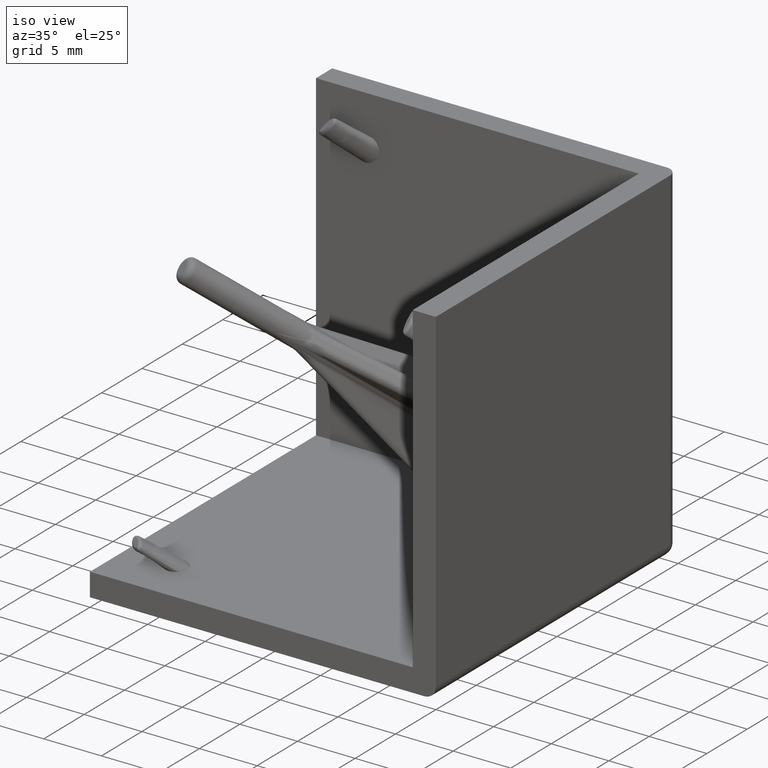
[diagram: clean part render]
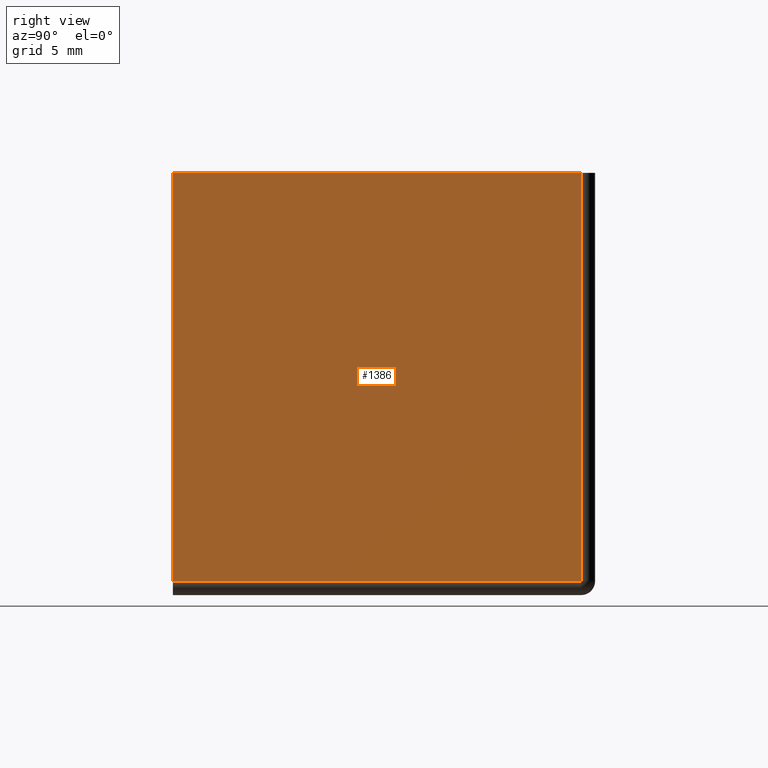
[diagram: tour spotlight — one face highlighted and labeled with its STEP entity id]
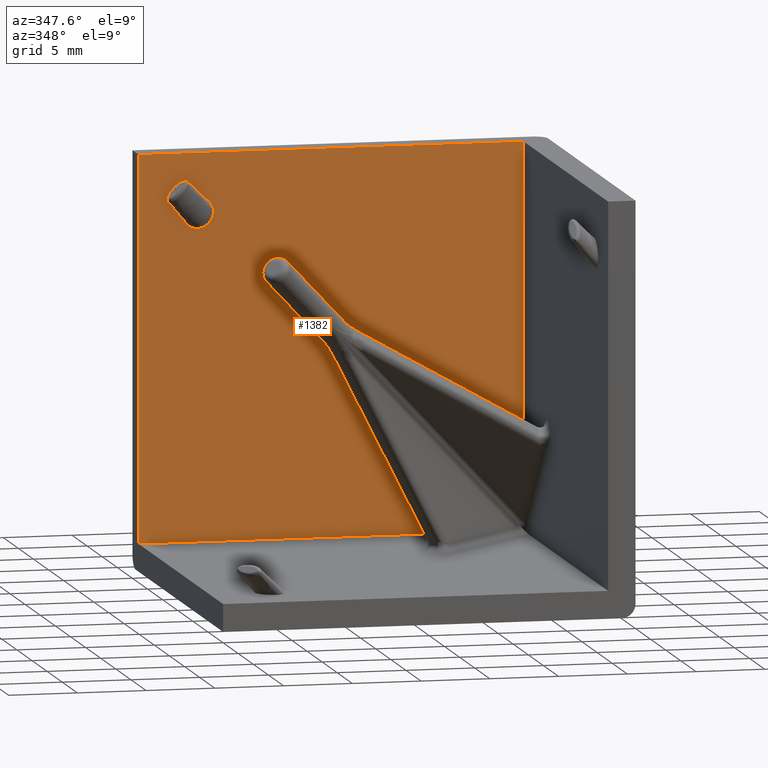
[diagram: tour spotlight — one face highlighted and labeled with its STEP entity id]
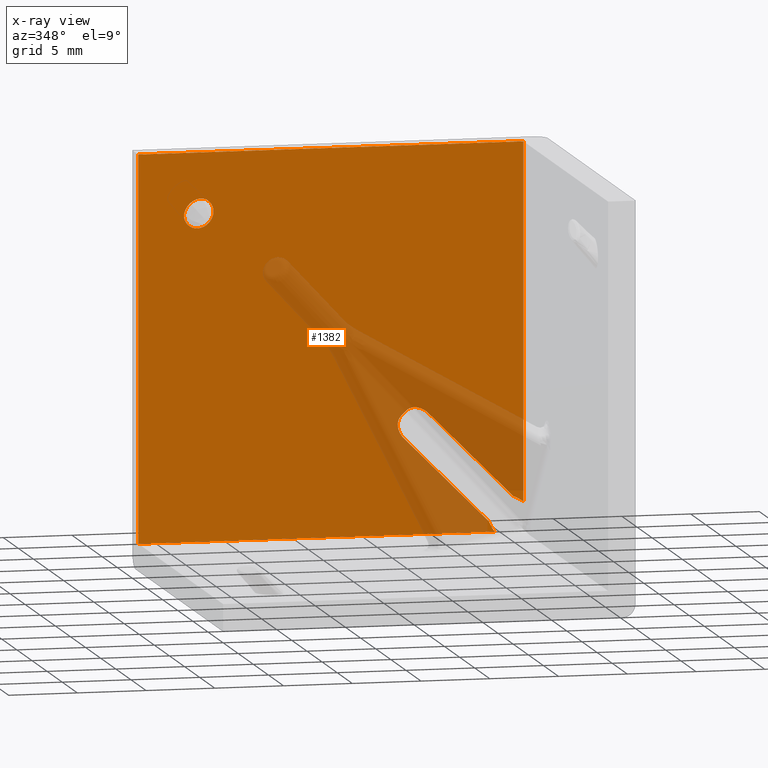
[diagram: x-ray of the same camera — body ghosted, this tour face saturated]
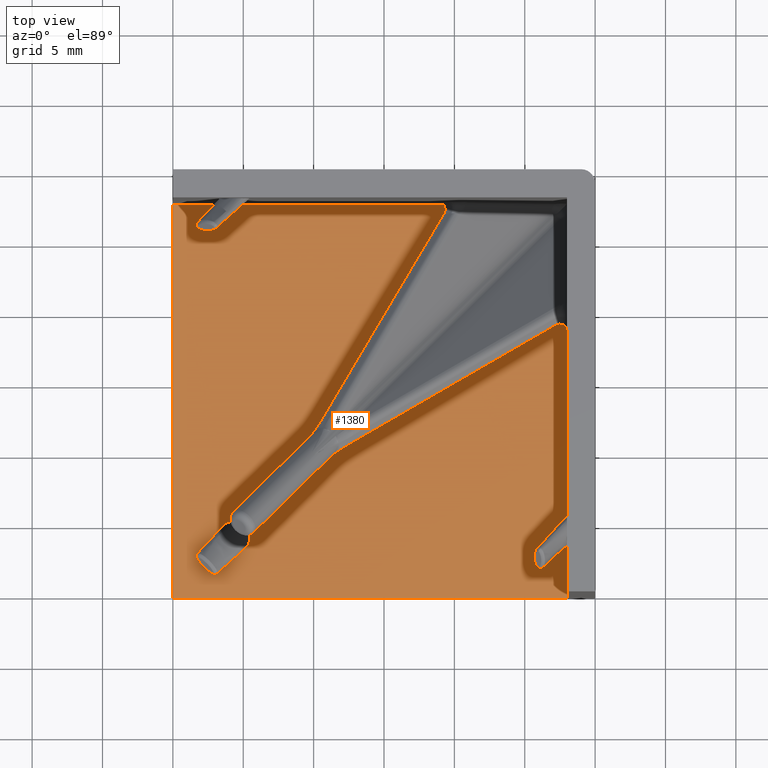
[diagram: tour spotlight — one face highlighted and labeled with its STEP entity id]
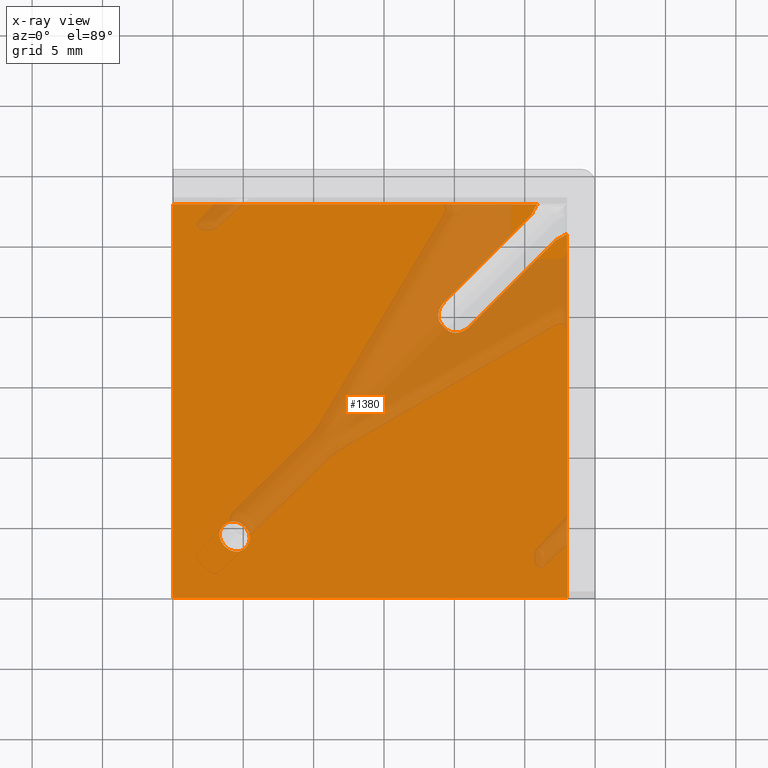
[diagram: x-ray of the same camera — body ghosted, this tour face saturated]
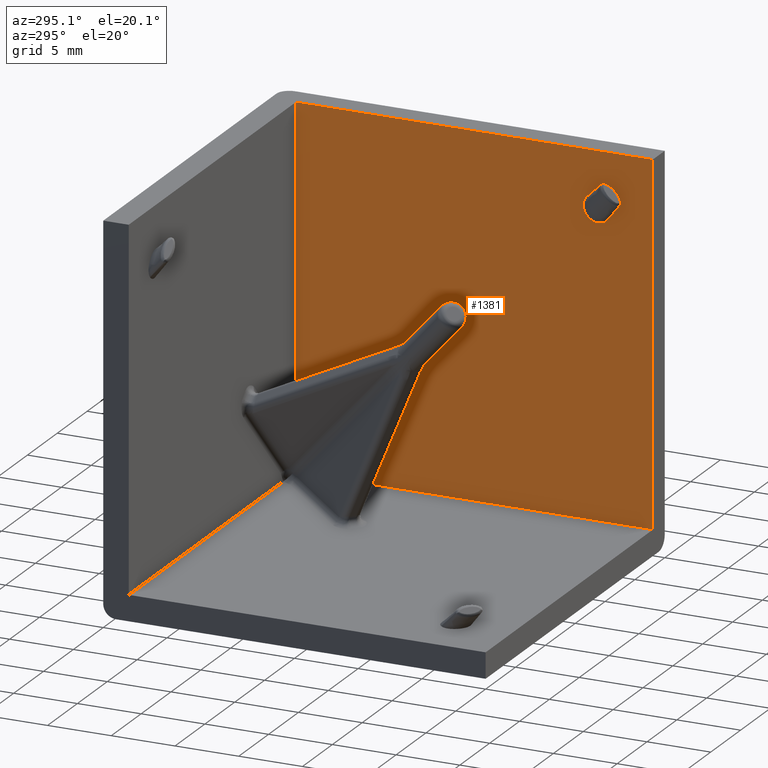
[diagram: tour spotlight — one face highlighted and labeled with its STEP entity id]
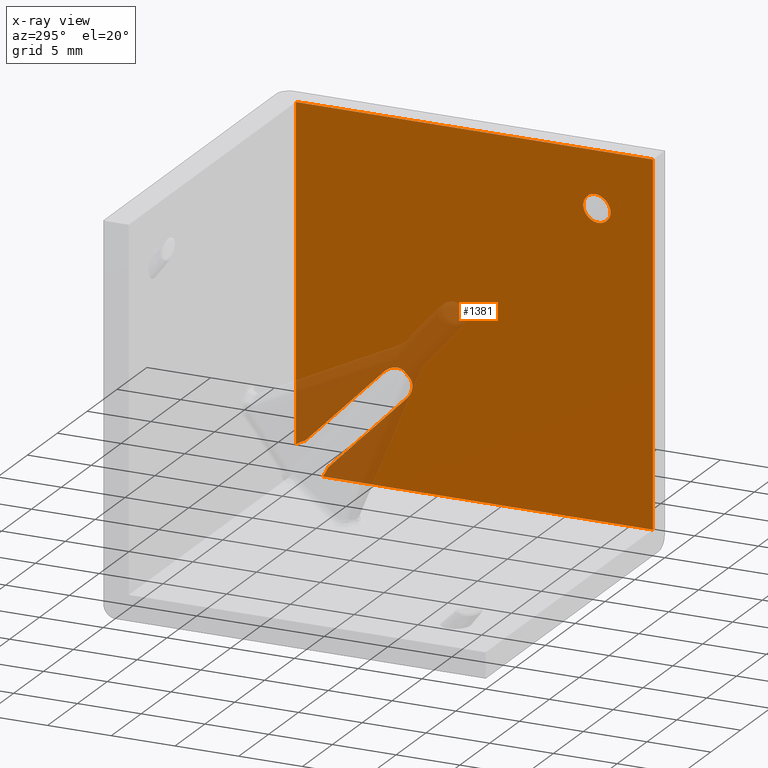
[diagram: x-ray of the same camera — body ghosted, this tour face saturated]
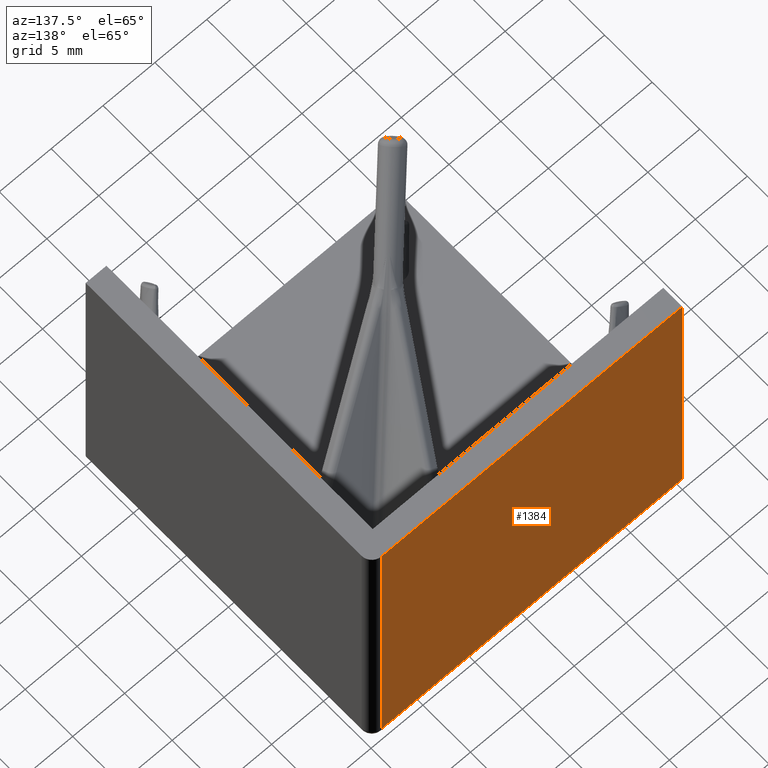
[diagram: tour spotlight — one face highlighted and labeled with its STEP entity id]
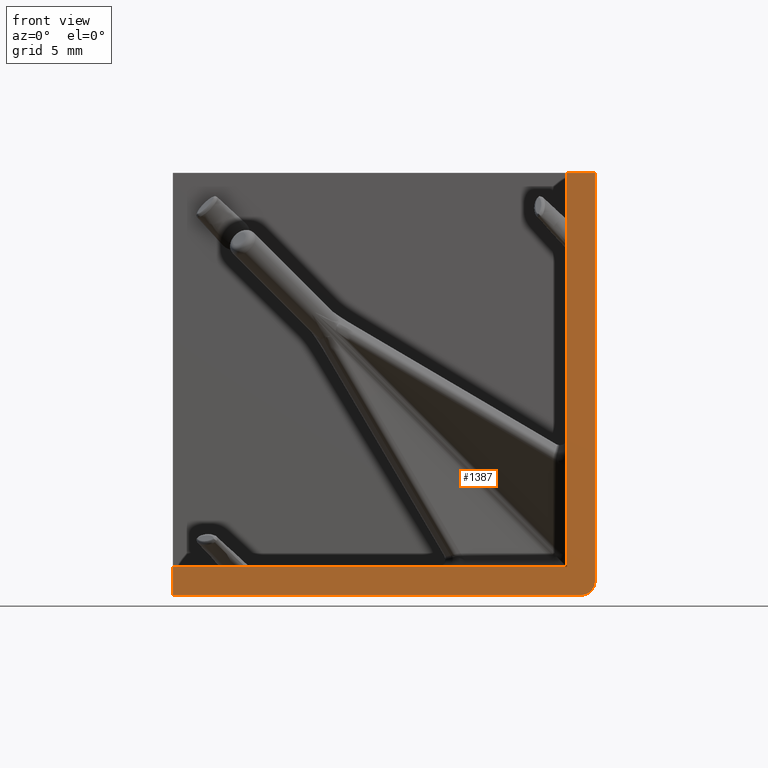
[diagram: tour spotlight — one face highlighted and labeled with its STEP entity id]
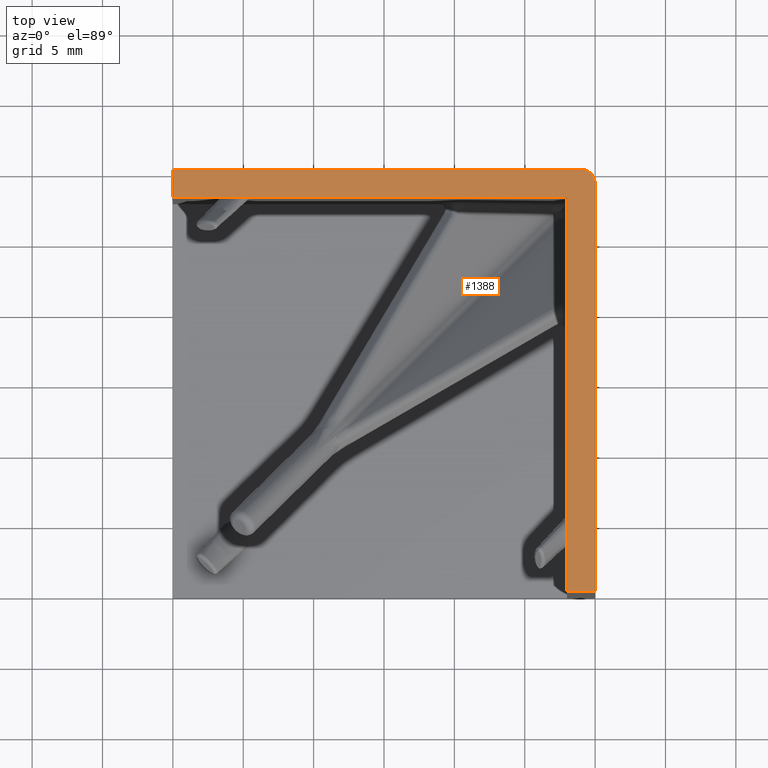
[diagram: tour spotlight — one face highlighted and labeled with its STEP entity id]
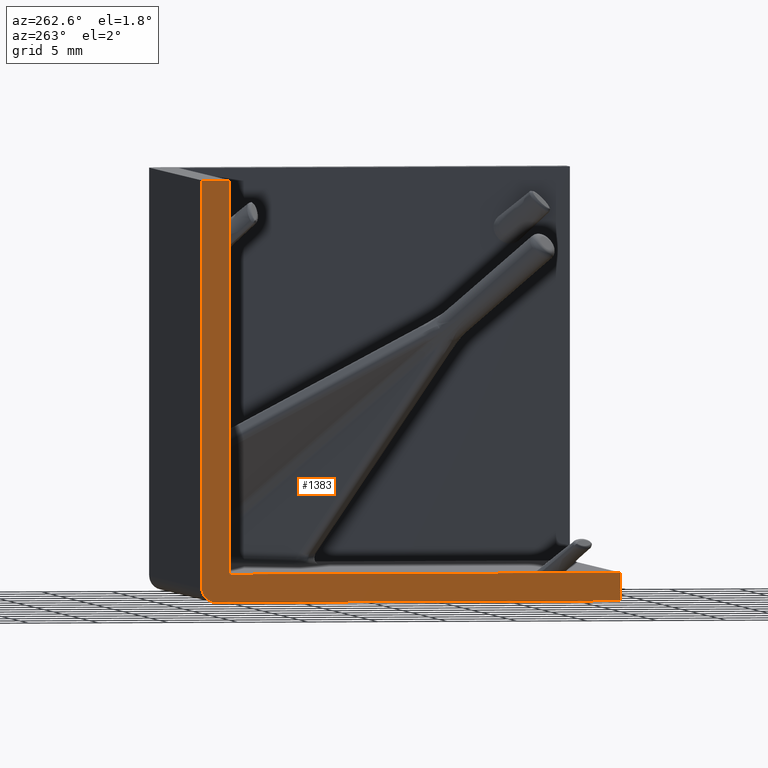
[diagram: tour spotlight — one face highlighted and labeled with its STEP entity id]
A machine part: a face-by-face anatomy tour. The part has 94 B-rep faces; the first image is the clean iso view, then the 8 largest visible faces are spotlighted one at a time (largest first), each with its STEP entity span.

Face 1 — right view, entity #1386. In plain terms, the highlighted planar face has unit normal (1, 0, 0).
Definition (entity closure, byte-faithful):
#23=PLANE('',#1517);
#220=FACE_OUTER_BOUND('',#319,.T.);
#319=EDGE_LOOP('',(#1068,#1069,#1070,#1071));
#437=LINE('',#3775,#509);
#438=LINE('',#3779,#510);
#439=LINE('',#3781,#511);
#440=LINE('',#3782,#512);
#509=VECTOR('',#1761,29.);
#510=VECTOR('',#1766,29.);
#511=VECTOR('',#1767,29.);
#512=VECTOR('',#1768,29.);
#685=VERTEX_POINT('',#3772);
#686=VERTEX_POINT('',#3774);
#687=VERTEX_POINT('',#3778);
#688=VERTEX_POINT('',#3780);
#834=EDGE_CURVE('',#686,#685,#437,.T.);
#836=EDGE_CURVE('',#687,#685,#438,.T.);
#837=EDGE_CURVE('',#688,#687,#439,.T.);
#838=EDGE_CURVE('',#688,#686,#440,.T.);
#1068=ORIENTED_EDGE('',*,*,#836,.F.);
#1069=ORIENTED_EDGE('',*,*,#837,.F.);
#1070=ORIENTED_EDGE('',*,*,#838,.T.);
#1071=ORIENTED_EDGE('',*,*,#834,.T.);
#1386=ADVANCED_FACE('',(#220),#23,.T.);
#1517=AXIS2_PLACEMENT_3D('',#3777,#1764,#1765);
#1761=DIRECTION('',(0.,0.,1.));
#1764=DIRECTION('center_axis',(1.,0.,0.));
#1765=DIRECTION('ref_axis',(0.,0.,-1.));
#1766=DIRECTION('',(0.,1.,0.));
#1767=DIRECTION('',(0.,0.,1.));
#1768=DIRECTION('',(0.,1.,0.));
#3772=CARTESIAN_POINT('',(30.,29.,0.));
#3774=CARTESIAN_POINT('',(30.,29.,-29.));
#3775=CARTESIAN_POINT('',(30.,29.,-29.));
#3777=CARTESIAN_POINT('Origin',(30.,0.,-29.));
#3778=CARTESIAN_POINT('',(30.,0.,0.));
#3779=CARTESIAN_POINT('',(30.,0.,0.));
#3780=CARTESIAN_POINT('',(30.,0.,-29.));
#3781=CARTESIAN_POINT('',(30.,0.,-29.));
#3782=CARTESIAN_POINT('',(30.,0.,-29.));

Face 2 — auxiliary view, entity #1382. An x-ray twin of the same camera follows (body ghosted, this face saturated) — the face is partly hidden behind the body. In plain terms, the highlighted planar face has unit normal (0, -1, 0).
Definition (entity closure, byte-faithful):
#20=PLANE('',#1508);
#77=FACE_BOUND('',#315,.T.);
#101=ELLIPSE('',#1509,2.30916470382844,1.2116115874888);
#102=ELLIPSE('',#1510,2.30916470389304,1.21161158760001);
#216=FACE_OUTER_BOUND('',#314,.T.);
#314=EDGE_LOOP('',(#1040,#1041,#1042,#1043,#1044,#1045,#1046,#1047,#1048,
#1049,#1050));
#315=EDGE_LOOP('',(#1051,#1052));
#401=LINE('',#2583,#473);
#417=LINE('',#3586,#489);
#425=LINE('',#3662,#497);
#426=LINE('',#3688,#498);
#427=LINE('',#3728,#499);
#428=LINE('',#3731,#500);
#429=LINE('',#3732,#501);
#473=VECTOR('',#1635,0.499999999999994);
#489=VECTOR('',#1719,25.9017045281975);
#497=VECTOR('',#1733,25.9017045281982);
#498=VECTOR('',#1738,8.7449318601002);
#499=VECTOR('',#1739,8.74493186009913);
#500=VECTOR('',#1742,28.);
#501=VECTOR('',#1743,27.9999999999998);
#536=B_SPLINE_CURVE_WITH_KNOTS('',3,(#2093,#2094,#2095,#2096,#2097,#2098,
#2099,#2100,#2101,#2102,#2103,#2104,#2105,#2106,#2107,#2108,#2109,#2110),
 .UNSPECIFIED.,.F.,.F.,(4,2,2,2,2,2,2,2,4),(9.9998634307824E-7,0.0267991192524014,
0.0419632161738594,0.0551690237669276,0.0700006947237737,0.0848317251026224,
0.0980336547221618,0.113183549980959,0.139943128540016),.UNSPECIFIED.);
#565=B_SPLINE_CURVE_WITH_KNOTS('',3,(#3689,#3690,#3691,#3692,#3693,#3694,
#3695,#3696,#3697,#3698,#3699,#3700,#3701,#3702,#3703,#3704,#3705,#3706,
#3707),.UNSPECIFIED.,.F.,.F.,(4,3,3,3,3,3,4),(1.57209315010399E-14,0.209621703290508,
0.407168312317999,0.597843076659109,0.78536971303498,1.16358281433584,1.57079632679491),
 .UNSPECIFIED.);
#566=B_SPLINE_CURVE_WITH_KNOTS('',3,(#3709,#3710,#3711,#3712,#3713,#3714,
#3715,#3716,#3717,#3718,#3719,#3720,#3721,#3722,#3723,#3724,#3725,#3726,
#3727),.UNSPECIFIED.,.F.,.F.,(4,3,3,3,3,3,4),(1.57079632679491,1.97800983925393,
2.35622294055477,2.54374957693064,2.73442434127176,2.93197095029927,3.14159265358981),
 .UNSPECIFIED.);
#567=B_SPLINE_CURVE_WITH_KNOTS('',3,(#3733,#3734,#3735,#3736,#3737,#3738,
#3739,#3740,#3741,#3742,#3743,#3744,#3745,#3746,#3747,#3748,#3749,#3750,
#3751,#3752,#3753,#3754),.UNSPECIFIED.,.F.,.F.,(4,2,2,2,2,2,2,2,2,2,4),
(9.99999141047509E-7,0.0202169274678619,0.0404512577863559,0.0725629679808536,
0.100469535646416,0.129149740153124,0.157820945860751,0.185725530060717,
0.221376398050869,0.248789324434904,0.276168482984899),.UNSPECIFIED.);
#590=VERTEX_POINT('',#2091);
#591=VERTEX_POINT('',#2092);
#612=VERTEX_POINT('',#2570);
#615=VERTEX_POINT('',#2577);
#617=VERTEX_POINT('',#2581);
#622=VERTEX_POINT('',#2598);
#665=VERTEX_POINT('',#3583);
#666=VERTEX_POINT('',#3585);
#669=VERTEX_POINT('',#3611);
#675=VERTEX_POINT('',#3660);
#676=VERTEX_POINT('',#3687);
#677=VERTEX_POINT('',#3708);
#678=VERTEX_POINT('',#3730);
#717=EDGE_CURVE('',#590,#591,#536,.T.);
#744=EDGE_CURVE('',#615,#617,#401,.T.);
#801=EDGE_CURVE('',#666,#665,#417,.T.);
#814=EDGE_CURVE('',#669,#675,#425,.T.);
#816=EDGE_CURVE('',#665,#612,#101,.T.);
#817=EDGE_CURVE('',#612,#676,#426,.T.);
#818=EDGE_CURVE('',#615,#676,#565,.T.);
#819=EDGE_CURVE('',#677,#617,#566,.T.);
#820=EDGE_CURVE('',#677,#622,#427,.T.);
#821=EDGE_CURVE('',#622,#669,#102,.T.);
#822=EDGE_CURVE('',#678,#675,#428,.T.);
#823=EDGE_CURVE('',#666,#678,#429,.T.);
#824=EDGE_CURVE('',#591,#590,#567,.T.);
#1040=ORIENTED_EDGE('',*,*,#816,.T.);
#1041=ORIENTED_EDGE('',*,*,#817,.T.);
#1042=ORIENTED_EDGE('',*,*,#818,.F.);
#1043=ORIENTED_EDGE('',*,*,#744,.T.);
#1044=ORIENTED_EDGE('',*,*,#819,.F.);
#1045=ORIENTED_EDGE('',*,*,#820,.T.);
#1046=ORIENTED_EDGE('',*,*,#821,.T.);
#1047=ORIENTED_EDGE('',*,*,#814,.T.);
#1048=ORIENTED_EDGE('',*,*,#822,.F.);
#1049=ORIENTED_EDGE('',*,*,#823,.F.);
#1050=ORIENTED_EDGE('',*,*,#801,.T.);
#1051=ORIENTED_EDGE('',*,*,#717,.F.);
#1052=ORIENTED_EDGE('',*,*,#824,.F.);
#1382=ADVANCED_FACE('',(#216,#77),#20,.T.);
#1508=AXIS2_PLACEMENT_3D('',#3685,#1734,#1735);
#1509=AXIS2_PLACEMENT_3D('',#3686,#1736,#1737);
#1510=AXIS2_PLACEMENT_3D('',#3729,#1740,#1741);
#1635=DIRECTION('',(0.707106781186546,0.,0.707106781186549));
#1719=DIRECTION('',(1.,0.,-3.49148336110938E-15));
#1733=DIRECTION('',(0.,0.,1.));
#1734=DIRECTION('center_axis',(0.,-1.,0.));
#1735=DIRECTION('ref_axis',(0.,0.,-1.));
#1736=DIRECTION('center_axis',(0.,1.,0.));
#1737=DIRECTION('ref_axis',(-0.650808546536153,0.,0.759241882245375));
#1738=DIRECTION('',(-0.707106781186544,0.,0.707106781186551));
#1739=DIRECTION('',(0.707106781186544,0.,-0.707106781186551));
#1740=DIRECTION('center_axis',(5.08850780993698E-14,1.,8.12172707391398E-14));
#1741=DIRECTION('ref_axis',(0.75924188225795,1.42228114471731E-14,-0.650808546521483));
#1742=DIRECTION('',(1.,0.,0.));
#1743=DIRECTION('',(0.,0.,1.));
#2091=CARTESIAN_POINT('',(5.15687613178487,28.,-3.56797183249991));
#2092=CARTESIAN_POINT('',(3.56797183249972,28.,-5.15687613178507));
#2093=CARTESIAN_POINT('Ctrl Pts',(5.15687613178487,28.,-3.56797183249991));
#2094=CARTESIAN_POINT('Ctrl Pts',(5.09193685050705,28.,-3.50663308381739));
#2095=CARTESIAN_POINT('Ctrl Pts',(4.99483952469198,27.9999999999967,-3.43174317236282));
#2096=CARTESIAN_POINT('Ctrl Pts',(4.79066505736388,27.9999999999967,-3.35007943140658));
#2097=CARTESIAN_POINT('Ctrl Pts',(4.68179780882591,28.0000000000304,-3.31723672417886));
#2098=CARTESIAN_POINT('Ctrl Pts',(4.41484974376621,28.0000000000304,-3.31572224543753));
#2099=CARTESIAN_POINT('Ctrl Pts',(4.2753132124315,28.0000000000113,-3.33987434101841));
#2100=CARTESIAN_POINT('Ctrl Pts',(3.96705646122052,28.0000000000113,-3.46595323833345));
#2101=CARTESIAN_POINT('Ctrl Pts',(3.8171221091707,28.,-3.56897430957663));
#2102=CARTESIAN_POINT('Ctrl Pts',(3.56882928874133,28.,-3.8173104923037));
#2103=CARTESIAN_POINT('Ctrl Pts',(3.46583558237832,28.0000000000114,-3.96725759674559));
#2104=CARTESIAN_POINT('Ctrl Pts',(3.33983272273932,28.0000000000114,-4.27549209477404));
#2105=CARTESIAN_POINT('Ctrl Pts',(3.31570012811391,28.0000000000304,-4.41501340352948));
#2106=CARTESIAN_POINT('Ctrl Pts',(3.31726371789367,28.0000000000304,-4.68188825344341));
#2107=CARTESIAN_POINT('Ctrl Pts',(3.35009684737404,27.9999999999967,-4.79072974910329));
#2108=CARTESIAN_POINT('Ctrl Pts',(3.4317756498678,27.9999999999967,-4.99488333720718));
#2109=CARTESIAN_POINT('Ctrl Pts',(3.50664984753405,28.,-5.09195460483947));
#2110=CARTESIAN_POINT('Ctrl Pts',(3.56797183249972,28.,-5.15687613178507));
#2570=CARTESIAN_POINT('',(25.4936193074848,28.,-27.2613862604518));
#2577=CARTESIAN_POINT('',(19.0976136706457,28.,-19.4511670612395));
#2581=CARTESIAN_POINT('',(19.451167061239,28.,-19.0976136706463));
#2583=CARTESIAN_POINT('',(19.8047204518323,28.,-18.744060280053));
#2598=CARTESIAN_POINT('',(27.2613862604504,28.,-25.4936193074847));
#3583=CARTESIAN_POINT('',(25.9017045281975,27.9999999994467,-27.9999999994467));
#3585=CARTESIAN_POINT('',(4.89858719658942E-16,28.,-27.9999999999998));
#3586=CARTESIAN_POINT('',(3.98134208076866E-15,28.,-27.9999999999999));
#3611=CARTESIAN_POINT('',(27.9999999994467,27.9999999994466,-25.9017045281982));
#3660=CARTESIAN_POINT('',(28.,28.,0.));
#3662=CARTESIAN_POINT('',(28.,28.,-29.));
#3685=CARTESIAN_POINT('Origin',(4.89858719658942E-16,28.,-29.));
#3686=CARTESIAN_POINT('Origin',(27.0782163796695,28.,-27.5415275249796));
#3687=CARTESIAN_POINT('',(19.3100186881937,28.,-21.0777856411606));
#3688=CARTESIAN_POINT('',(13.6161165235166,28.,-15.3838834764835));
#3689=CARTESIAN_POINT('Ctrl Pts',(19.0976136706457,28.,-19.4511670612395));
#3690=CARTESIAN_POINT('Ctrl Pts',(19.0531305636494,28.,-19.4956501682646));
#3691=CARTESIAN_POINT('Ctrl Pts',(19.0121612356888,28.,-19.5476511056917));
#3692=CARTESIAN_POINT('Ctrl Pts',(18.9773321423829,28.,-19.6067849122596));
#3693=CARTESIAN_POINT('Ctrl Pts',(18.9445093517553,28.,-19.6625123621515));
#3694=CARTESIAN_POINT('Ctrl Pts',(18.9171580573293,28.,-19.7245629088179));
#3695=CARTESIAN_POINT('Ctrl Pts',(18.8970092885537,28.,-19.7917587792937));
#3696=CARTESIAN_POINT('Ctrl Pts',(18.87756141366,28.,-19.8566171781837));
#3697=CARTESIAN_POINT('Ctrl Pts',(18.8648339018569,28.,-19.926253898573));
#3698=CARTESIAN_POINT('Ctrl Pts',(18.8597318713853,28.,-19.9989802203662));
#3699=CARTESIAN_POINT('Ctrl Pts',(18.8547140777809,28.,-20.0705057971723));
#3700=CARTESIAN_POINT('Ctrl Pts',(18.8570757049852,28.,-20.1450019739831));
#3701=CARTESIAN_POINT('Ctrl Pts',(18.866932441114,28.,-20.2204858317078));
#3702=CARTESIAN_POINT('Ctrl Pts',(18.8868119996239,28.,-20.3727254520623));
#3703=CARTESIAN_POINT('Ctrl Pts',(18.9378713476309,28.,-20.5287249436918));
#3704=CARTESIAN_POINT('Ctrl Pts',(19.0119620557021,28.,-20.6720784111723));
#3705=CARTESIAN_POINT('Ctrl Pts',(19.0917338493563,28.,-20.8264238550905));
#3706=CARTESIAN_POINT('Ctrl Pts',(19.1976479191864,28.,-20.9654148721338));
#3707=CARTESIAN_POINT('Ctrl Pts',(19.3100186881937,28.,-21.0777856411606));
#3708=CARTESIAN_POINT('',(21.0777856411601,28.,-19.3100186881943));
#3709=CARTESIAN_POINT('Ctrl Pts',(21.0777856411601,28.,-19.3100186881943));
#3710=CARTESIAN_POINT('Ctrl Pts',(20.9654148721332,28.,-19.197647919187));
#3711=CARTESIAN_POINT('Ctrl Pts',(20.8264238550899,28.,-19.0917338493568));
#3712=CARTESIAN_POINT('Ctrl Pts',(20.6720784111718,28.,-19.0119620557027));
#3713=CARTESIAN_POINT('Ctrl Pts',(20.5287249436913,28.,-18.9378713476315));
#3714=CARTESIAN_POINT('Ctrl Pts',(20.3727254520617,28.,-18.8868119996245));
#3715=CARTESIAN_POINT('Ctrl Pts',(20.2204858317073,28.,-18.8669324411146));
#3716=CARTESIAN_POINT('Ctrl Pts',(20.1450019739826,28.,-18.8570757049857));
#3717=CARTESIAN_POINT('Ctrl Pts',(20.0705057971718,28.,-18.8547140777814));
#3718=CARTESIAN_POINT('Ctrl Pts',(19.9989802203657,28.,-18.8597318713858));
#3719=CARTESIAN_POINT('Ctrl Pts',(19.9262538985725,28.,-18.8648339018575));
#3720=CARTESIAN_POINT('Ctrl Pts',(19.8566171781833,28.,-18.8775614136605));
#3721=CARTESIAN_POINT('Ctrl Pts',(19.7917587792932,28.,-18.8970092885542));
#3722=CARTESIAN_POINT('Ctrl Pts',(19.7245629088173,28.,-18.9171580573298));
#3723=CARTESIAN_POINT('Ctrl Pts',(19.6625123621511,28.,-18.944509351756));
#3724=CARTESIAN_POINT('Ctrl Pts',(19.6067849122591,28.,-18.9773321423834));
#3725=CARTESIAN_POINT('Ctrl Pts',(19.547651105691,28.,-19.0121612356892));
#3726=CARTESIAN_POINT('Ctrl Pts',(19.4956501682641,28.,-19.0531305636499));
#3727=CARTESIAN_POINT('Ctrl Pts',(19.451167061239,28.,-19.0976136706463));
#3728=CARTESIAN_POINT('',(26.7225587038992,28.,-24.9547917509335));
#3729=CARTESIAN_POINT('Origin',(27.5415275248535,28.0000000000001,-27.0782163797088));
#3730=CARTESIAN_POINT('',(4.89858719658942E-16,28.,0.));
#3731=CARTESIAN_POINT('',(4.89858719658942E-16,28.,0.));
#3732=CARTESIAN_POINT('',(4.89858719658942E-16,28.,-29.));
#3733=CARTESIAN_POINT('Ctrl Pts',(3.56797183249972,28.,-5.15687613178507));
#3734=CARTESIAN_POINT('Ctrl Pts',(3.61424398046843,28.,-5.20586441066847));
#3735=CARTESIAN_POINT('Ctrl Pts',(3.66654245305144,28.,-5.25075641566986));
#3736=CARTESIAN_POINT('Ctrl Pts',(3.77695119702573,28.,-5.32770002265015));
#3737=CARTESIAN_POINT('Ctrl Pts',(3.8354744508774,28.0000000000205,-5.36002240830828));
#3738=CARTESIAN_POINT('Ctrl Pts',(3.99458333181129,28.0000000000205,-5.42744626984555));
#3739=CARTESIAN_POINT('Ctrl Pts',(4.11938322730925,28.0000000000063,-5.46188957297722));
#3740=CARTESIAN_POINT('Ctrl Pts',(4.40221236043665,28.0000000000063,-5.46242184537166));
#3741=CARTESIAN_POINT('Ctrl Pts',(4.5448584212942,28.0000000000024,-5.43773533590953));
#3742=CARTESIAN_POINT('Ctrl Pts',(4.84593038071099,28.0000000000024,-5.31262839606181));
#3743=CARTESIAN_POINT('Ctrl Pts',(4.98560691423612,28.,-5.21727769362836));
#3744=CARTESIAN_POINT('Ctrl Pts',(5.21868588710748,28.,-4.98377744087342));
#3745=CARTESIAN_POINT('Ctrl Pts',(5.31377225348502,28.0000000000027,-4.84396888958242));
#3746=CARTESIAN_POINT('Ctrl Pts',(5.43830135831297,28.0000000000027,-4.54271573551071));
#3747=CARTESIAN_POINT('Ctrl Pts',(5.46265852448968,28.0000000000063,-4.40010185189841));
#3748=CARTESIAN_POINT('Ctrl Pts',(5.4615439859662,28.0000000000063,-4.10118439830074));
#3749=CARTESIAN_POINT('Ctrl Pts',(5.4194008409972,28.0000000000215,-3.97525768249568));
#3750=CARTESIAN_POINT('Ctrl Pts',(5.35944596788615,28.0000000000215,-3.83438060685683));
#3751=CARTESIAN_POINT('Ctrl Pts',(5.32718212599777,28.,-3.77611836759559));
#3752=CARTESIAN_POINT('Ctrl Pts',(5.25042496445557,28.,-3.66615736364301));
#3753=CARTESIAN_POINT('Ctrl Pts',(5.20568275330014,28.,-3.6140723903173));
#3754=CARTESIAN_POINT('Ctrl Pts',(5.15687613178487,28.,-3.56797183249991));

Face 3 — top view, entity #1380. An x-ray twin of the same camera follows (body ghosted, this face saturated) — the face is partly hidden behind the body. In plain terms, the highlighted planar face has unit normal (-0, -0, -1).
Definition (entity closure, byte-faithful):
#18=PLANE('',#1502);
#75=FACE_BOUND('',#311,.T.);
#97=ELLIPSE('',#1503,2.30916470388977,1.21161158756856);
#98=ELLIPSE('',#1504,2.3091647037826,1.21161158753113);
#214=FACE_OUTER_BOUND('',#310,.T.);
#310=EDGE_LOOP('',(#1014,#1015,#1016,#1017,#1018,#1019,#1020,#1021,#1022,
#1023,#1024));
#311=EDGE_LOOP('',(#1025,#1026));
#414=LINE('',#3538,#486);
#415=LINE('',#3560,#487);
#416=LINE('',#3582,#488);
#417=LINE('',#3586,#489);
#418=LINE('',#3588,#490);
#419=LINE('',#3590,#491);
#420=LINE('',#3591,#492);
#486=VECTOR('',#1714,8.7449318601);
#487=VECTOR('',#1715,0.5);
#488=VECTOR('',#1716,8.74493186009893);
#489=VECTOR('',#1719,25.9017045281975);
#490=VECTOR('',#1720,28.0000000000002);
#491=VECTOR('',#1721,28.);
#492=VECTOR('',#1722,25.9017045281977);
#544=B_SPLINE_CURVE_WITH_KNOTS('',3,(#2479,#2480,#2481,#2482,#2483,#2484,
#2485,#2486,#2487,#2488,#2489,#2490,#2491,#2492,#2493,#2494,#2495,#2496,
#2497,#2498,#2499,#2500),.UNSPECIFIED.,.F.,.F.,(4,2,2,2,2,2,2,2,2,2,4),
(9.99999141480623E-7,0.0202220531507337,0.0404440146537649,0.0667528580975194,
0.0873343683526495,0.108500034556084,0.129653499932419,0.150226283796508,
0.173971853177572,0.188840202392618,0.20369967181164),.UNSPECIFIED.);
#559=B_SPLINE_CURVE_WITH_KNOTS('',3,(#3540,#3541,#3542,#3543,#3544,#3545,
#3546,#3547,#3548,#3549,#3550,#3551,#3552,#3553,#3554,#3555,#3556,#3557,
#3558),.UNSPECIFIED.,.F.,.F.,(4,3,3,3,3,3,4),(2.0491421059976E-14,0.209621703290483,
0.407168312317981,0.597843076659118,0.78536971303502,1.16358281433593,1.57079632679491),
 .UNSPECIFIED.);
#560=B_SPLINE_CURVE_WITH_KNOTS('',3,(#3562,#3563,#3564,#3565,#3566,#3567,
#3568,#3569,#3570,#3571,#3572,#3573,#3574,#3575,#3576,#3577,#3578,#3579,
#3580),.UNSPECIFIED.,.F.,.F.,(4,3,3,3,3,3,4),(1.57079632679492,1.97800983925402,
2.35622294055484,2.54374957693069,2.73442434127179,2.93197095029927,3.14159265358981),
 .UNSPECIFIED.);
#561=B_SPLINE_CURVE_WITH_KNOTS('',3,(#3592,#3593,#3594,#3595,#3596,#3597,
#3598,#3599,#3600,#3601,#3602,#3603,#3604,#3605,#3606,#3607,#3608,#3609),
 .UNSPECIFIED.,.F.,.F.,(4,2,2,2,2,2,2,2,4),(9.99986347791833E-7,0.0268339075036231,
0.0430876769116758,0.0578137388818365,0.0743617618789594,0.0909078714170331,
0.105622146679277,0.122480235132331,0.152339572969768),.UNSPECIFIED.);
#602=VERTEX_POINT('',#2477);
#603=VERTEX_POINT('',#2478);
#658=VERTEX_POINT('',#3534);
#659=VERTEX_POINT('',#3535);
#660=VERTEX_POINT('',#3537);
#661=VERTEX_POINT('',#3539);
#662=VERTEX_POINT('',#3559);
#663=VERTEX_POINT('',#3561);
#664=VERTEX_POINT('',#3581);
#665=VERTEX_POINT('',#3583);
#666=VERTEX_POINT('',#3585);
#667=VERTEX_POINT('',#3587);
#668=VERTEX_POINT('',#3589);
#729=EDGE_CURVE('',#602,#603,#544,.T.);
#794=EDGE_CURVE('',#658,#659,#97,.T.);
#795=EDGE_CURVE('',#659,#660,#414,.T.);
#796=EDGE_CURVE('',#661,#660,#559,.T.);
#797=EDGE_CURVE('',#661,#662,#415,.T.);
#798=EDGE_CURVE('',#663,#662,#560,.T.);
#799=EDGE_CURVE('',#663,#664,#416,.T.);
#800=EDGE_CURVE('',#664,#665,#98,.T.);
#801=EDGE_CURVE('',#666,#665,#417,.T.);
#802=EDGE_CURVE('',#667,#666,#418,.T.);
#803=EDGE_CURVE('',#667,#668,#419,.T.);
#804=EDGE_CURVE('',#658,#668,#420,.T.);
#805=EDGE_CURVE('',#603,#602,#561,.T.);
#1014=ORIENTED_EDGE('',*,*,#794,.T.);
#1015=ORIENTED_EDGE('',*,*,#795,.T.);
#1016=ORIENTED_EDGE('',*,*,#796,.F.);
#1017=ORIENTED_EDGE('',*,*,#797,.T.);
#1018=ORIENTED_EDGE('',*,*,#798,.F.);
#1019=ORIENTED_EDGE('',*,*,#799,.T.);
#1020=ORIENTED_EDGE('',*,*,#800,.T.);
#1021=ORIENTED_EDGE('',*,*,#801,.F.);
#1022=ORIENTED_EDGE('',*,*,#802,.F.);
#1023=ORIENTED_EDGE('',*,*,#803,.T.);
#1024=ORIENTED_EDGE('',*,*,#804,.F.);
#1025=ORIENTED_EDGE('',*,*,#729,.F.);
#1026=ORIENTED_EDGE('',*,*,#805,.F.);
#1380=ADVANCED_FACE('',(#214,#75),#18,.F.);
#1502=AXIS2_PLACEMENT_3D('',#3533,#1710,#1711);
#1503=AXIS2_PLACEMENT_3D('',#3536,#1712,#1713);
#1504=AXIS2_PLACEMENT_3D('',#3584,#1717,#1718);
#1710=DIRECTION('center_axis',(-3.49148336110938E-15,-1.15648231731811E-16,
-1.));
#1711=DIRECTION('ref_axis',(-1.,0.,3.5527136788005E-15));
#1712=DIRECTION('center_axis',(3.9320681348319E-14,-8.20510307458139E-14,
-1.));
#1713=DIRECTION('ref_axis',(0.759241882247809,0.650808546533314,-2.35456039430794E-14));
#1714=DIRECTION('',(-0.707106781186546,-0.707106781186549,2.55062720993024E-15));
#1715=DIRECTION('',(-0.707106781186556,0.707106781186539,2.38707591215068E-15));
#1716=DIRECTION('',(0.707106781186546,0.707106781186549,-2.55062720993024E-15));
#1717=DIRECTION('center_axis',(0.,0.,-1.));
#1718=DIRECTION('ref_axis',(0.650808546505998,0.759241882271223,0.));
#1719=DIRECTION('',(1.,0.,-3.49148336110938E-15));
#1720=DIRECTION('',(-2.44929359829471E-16,1.,-1.1564823173181E-16));
#1721=DIRECTION('',(1.,6.93889390390722E-15,-3.49148336110938E-15));
#1722=DIRECTION('',(0.,-1.,1.15648231731811E-16));
#2477=CARTESIAN_POINT('',(5.15687613178758,3.56797183249677,-27.9999999999999));
#2478=CARTESIAN_POINT('',(3.56797183250236,5.15687613178183,-27.9999999999999));
#2479=CARTESIAN_POINT('Ctrl Pts',(5.15687613178758,3.56797183249677,-27.9999999999999));
#2480=CARTESIAN_POINT('Ctrl Pts',(5.2058767405425,3.61425562200848,-27.9999999999999));
#2481=CARTESIAN_POINT('Ctrl Pts',(5.25078493618947,3.66657600724303,-27.9999999999999));
#2482=CARTESIAN_POINT('Ctrl Pts',(5.32770735415866,3.7769690313044,-27.9999999999999));
#2483=CARTESIAN_POINT('Ctrl Pts',(5.36001098653913,3.83545810143108,-28.0000000000137));
#2484=CARTESIAN_POINT('Ctrl Pts',(5.41995433265716,3.97688984536294,-28.0000000000137));
#2485=CARTESIAN_POINT('Ctrl Pts',(5.46196881404483,4.10316708514338,-28.0000000000074));
#2486=CARTESIAN_POINT('Ctrl Pts',(5.46233696542734,4.40293838571166,-28.0000000000074));
#2487=CARTESIAN_POINT('Ctrl Pts',(5.43754132039729,4.54558325600112,-28.000000000002));
#2488=CARTESIAN_POINT('Ctrl Pts',(5.31221463246003,4.84665965711263,-28.000000000002));
#2489=CARTESIAN_POINT('Ctrl Pts',(5.21671771829351,4.98635095698489,-27.9999999999999));
#2490=CARTESIAN_POINT('Ctrl Pts',(4.98290694729428,5.2193686790065,-27.9999999999999));
#2491=CARTESIAN_POINT('Ctrl Pts',(4.84296515191231,5.31436882783711,-28.0000000000024));
#2492=CARTESIAN_POINT('Ctrl Pts',(4.54158867866806,5.43858925776978,-28.0000000000024));
#2493=CARTESIAN_POINT('Ctrl Pts',(4.39901747221972,5.4627823892312,-28.0000000000073));
#2494=CARTESIAN_POINT('Ctrl Pts',(4.11652137830726,5.46145250571256,-28.0000000000073));
#2495=CARTESIAN_POINT('Ctrl Pts',(3.99172560739076,5.42657247134958,-28.0000000000151));
#2496=CARTESIAN_POINT('Ctrl Pts',(3.83339785986018,5.35892384096177,-28.0000000000151));
#2497=CARTESIAN_POINT('Ctrl Pts',(3.77539990073018,5.32673092615524,-27.9999999999999));
#2498=CARTESIAN_POINT('Ctrl Pts',(3.66584536736299,5.25015638469793,-27.9999999999999));
#2499=CARTESIAN_POINT('Ctrl Pts',(3.61393539993265,5.20553771674376,-27.9999999999999));
#2500=CARTESIAN_POINT('Ctrl Pts',(3.56797183250236,5.15687613178183,-27.9999999999999));
#3533=CARTESIAN_POINT('Origin',(-30.0665927567459,29.9999999999996,-27.9999999999998));
#3534=CARTESIAN_POINT('',(27.9999999994467,25.9017045281977,-27.9999999994467));
#3535=CARTESIAN_POINT('',(27.2613862604512,25.4936193074845,-28.));
#3536=CARTESIAN_POINT('Origin',(27.5415275249159,27.0782163797203,-28.0000000000001));
#3537=CARTESIAN_POINT('',(21.0777856411602,19.3100186881935,-28.));
#3538=CARTESIAN_POINT('',(20.9119268105143,19.1441598575476,-28.));
#3539=CARTESIAN_POINT('',(19.4511670612391,19.0976136706455,-28.));
#3540=CARTESIAN_POINT('Ctrl Pts',(19.4511670612391,19.0976136706455,-28.));
#3541=CARTESIAN_POINT('Ctrl Pts',(19.4956501682642,19.0531305636492,-28.));
#3542=CARTESIAN_POINT('Ctrl Pts',(19.5476511056912,19.0121612356885,-28.));
#3543=CARTESIAN_POINT('Ctrl Pts',(19.6067849122592,18.9773321423827,-28.));
#3544=CARTESIAN_POINT('Ctrl Pts',(19.6625123621512,18.9445093517553,-28.));
#3545=CARTESIAN_POINT('Ctrl Pts',(19.7245629088173,18.9171580573289,-28.));
#3546=CARTESIAN_POINT('Ctrl Pts',(19.7917587792933,18.8970092885535,-28.));
#3547=CARTESIAN_POINT('Ctrl Pts',(19.8566171781834,18.8775614136599,-28.));
#3548=CARTESIAN_POINT('Ctrl Pts',(19.9262538985725,18.8648339018568,-28.));
#3549=CARTESIAN_POINT('Ctrl Pts',(19.9989802203658,18.8597318713851,-28.));
#3550=CARTESIAN_POINT('Ctrl Pts',(20.070505797172,18.8547140777806,-28.));
#3551=CARTESIAN_POINT('Ctrl Pts',(20.1450019739829,18.8570757049851,-28.));
#3552=CARTESIAN_POINT('Ctrl Pts',(20.2204858317074,18.8669324411138,-28.));
#3553=CARTESIAN_POINT('Ctrl Pts',(20.3727254520616,18.8868119996235,-28.));
#3554=CARTESIAN_POINT('Ctrl Pts',(20.5287249436916,18.9378713476307,-28.));
#3555=CARTESIAN_POINT('Ctrl Pts',(20.6720784111719,19.0119620557019,-28.));
#3556=CARTESIAN_POINT('Ctrl Pts',(20.8264238550898,19.0917338493561,-28.));
#3557=CARTESIAN_POINT('Ctrl Pts',(20.9654148721331,19.1976479191865,-28.));
#3558=CARTESIAN_POINT('Ctrl Pts',(21.0777856411602,19.3100186881935,-28.));
#3559=CARTESIAN_POINT('',(19.0976136706459,19.4511670612388,-28.));
#3560=CARTESIAN_POINT('',(-10.758906012431,49.307686744315,-27.9999999999999));
#3561=CARTESIAN_POINT('',(19.3100186881938,21.0777856411599,-28.));
#3562=CARTESIAN_POINT('Ctrl Pts',(19.3100186881939,21.0777856411599,-28.));
#3563=CARTESIAN_POINT('Ctrl Pts',(19.1976479191868,20.9654148721327,-28.));
#3564=CARTESIAN_POINT('Ctrl Pts',(19.0917338493565,20.8264238550898,-28.));
#3565=CARTESIAN_POINT('Ctrl Pts',(19.0119620557023,20.6720784111716,-28.));
#3566=CARTESIAN_POINT('Ctrl Pts',(18.937871347631,20.528724943691,-28.));
#3567=CARTESIAN_POINT('Ctrl Pts',(18.8868119996241,20.3727254520615,-28.));
#3568=CARTESIAN_POINT('Ctrl Pts',(18.8669324411142,20.2204858317071,-28.));
#3569=CARTESIAN_POINT('Ctrl Pts',(18.8570757049853,20.1450019739824,-28.));
#3570=CARTESIAN_POINT('Ctrl Pts',(18.8547140777809,20.0705057971716,-28.));
#3571=CARTESIAN_POINT('Ctrl Pts',(18.8597318713854,19.9989802203655,-28.));
#3572=CARTESIAN_POINT('Ctrl Pts',(18.8648339018571,19.9262538985723,-28.));
#3573=CARTESIAN_POINT('Ctrl Pts',(18.8775614136601,19.8566171781831,-28.));
#3574=CARTESIAN_POINT('Ctrl Pts',(18.8970092885538,19.791758779293,-28.));
#3575=CARTESIAN_POINT('Ctrl Pts',(18.9171580573294,19.724562908817,-28.));
#3576=CARTESIAN_POINT('Ctrl Pts',(18.9445093517555,19.6625123621508,-28.));
#3577=CARTESIAN_POINT('Ctrl Pts',(18.977332142383,19.6067849122589,-28.));
#3578=CARTESIAN_POINT('Ctrl Pts',(19.0121612356889,19.547651105691,-28.));
#3579=CARTESIAN_POINT('Ctrl Pts',(19.0531305636495,19.4956501682639,-28.));
#3580=CARTESIAN_POINT('Ctrl Pts',(19.0976136706458,19.4511670612388,-28.));
#3581=CARTESIAN_POINT('',(25.4936193074841,27.2613862604501,-28.));
#3582=CARTESIAN_POINT('',(-0.9171798548561,0.850587098109867,-27.9999999999999));
#3583=CARTESIAN_POINT('',(25.9017045281975,27.9999999994467,-27.9999999994467));
#3584=CARTESIAN_POINT('Origin',(27.0782163796014,27.5415275248329,-28.));
#3585=CARTESIAN_POINT('',(4.89858719658942E-16,28.,-27.9999999999998));
#3586=CARTESIAN_POINT('',(3.98134208076866E-15,28.,-27.9999999999999));
#3587=CARTESIAN_POINT('',(3.46944695195361E-15,-2.0122792321331E-13,-27.9999999999999));
#3588=CARTESIAN_POINT('',(0.,29.9999999999996,-27.9999999999999));
#3589=CARTESIAN_POINT('',(28.,-4.89858719658942E-16,-28.));
#3590=CARTESIAN_POINT('',(-30.0665927567457,-4.09856820404354E-13,-27.9999999999998));
#3591=CARTESIAN_POINT('',(28.,-3.7421048792713E-16,-28.));
#3592=CARTESIAN_POINT('Ctrl Pts',(3.56797183250236,5.15687613178183,-27.9999999999999));
#3593=CARTESIAN_POINT('Ctrl Pts',(3.50655347818453,5.09185257869509,-27.9999999999999));
#3594=CARTESIAN_POINT('Ctrl Pts',(3.43155687252816,4.99459553603158,-27.9999999999954));
#3595=CARTESIAN_POINT('Ctrl Pts',(3.34780488687597,4.78484326957279,-27.9999999999954));
#3596=CARTESIAN_POINT('Ctrl Pts',(3.31719403599935,4.67614562572568,-28.0000000000332));
#3597=CARTESIAN_POINT('Ctrl Pts',(3.31573169527607,4.41481823646045,-28.0000000000332));
#3598=CARTESIAN_POINT('Ctrl Pts',(3.33987734902117,4.27531155364567,-28.0000000000099));
#3599=CARTESIAN_POINT('Ctrl Pts',(3.46597247363103,3.96700303217793,-28.0000000000099));
#3600=CARTESIAN_POINT('Ctrl Pts',(3.56904777946675,3.81701141575063,-27.9999999999999));
#3601=CARTESIAN_POINT('Ctrl Pts',(3.81752364773737,3.56865344690624,-27.9999999999999));
#3602=CARTESIAN_POINT('Ctrl Pts',(3.96755022250273,3.4656524165455,-28.0000000000101));
#3603=CARTESIAN_POINT('Ctrl Pts',(4.2757982536806,3.33976421501559,-28.0000000000101));
#3604=CARTESIAN_POINT('Ctrl Pts',(4.4152634905883,3.3156715458568,-28.0000000000333));
#3605=CARTESIAN_POINT('Ctrl Pts',(4.68185330056374,3.31729799675364,-28.0000000000333));
#3606=CARTESIAN_POINT('Ctrl Pts',(4.79050176940888,3.35004124833996,-27.9999999999954));
#3607=CARTESIAN_POINT('Ctrl Pts',(4.99470674861109,3.43164214943859,-27.9999999999954));
#3608=CARTESIAN_POINT('Ctrl Pts',(5.09188994081226,3.50658877500632,-27.9999999999999));
#3609=CARTESIAN_POINT('Ctrl Pts',(5.15687613178758,3.56797183249677,-27.9999999999999));

Face 4 — auxiliary view, entity #1381. An x-ray twin of the same camera follows (body ghosted, this face saturated) — the face is partly hidden behind the body. In plain terms, the highlighted planar face has unit normal (-1, 0, 0).
Definition (entity closure, byte-faithful):
#19=PLANE('',#1505);
#76=FACE_BOUND('',#313,.T.);
#99=ELLIPSE('',#1506,2.30916470423399,1.21161158769759);
#100=ELLIPSE('',#1507,2.30916470389506,1.21161158755189);
#215=FACE_OUTER_BOUND('',#312,.T.);
#312=EDGE_LOOP('',(#1027,#1028,#1029,#1030,#1031,#1032,#1033,#1034,#1035,
#1036,#1037));
#313=EDGE_LOOP('',(#1038,#1039));
#407=LINE('',#2625,#479);
#420=LINE('',#3591,#492);
#421=LINE('',#3615,#493);
#422=LINE('',#3656,#494);
#423=LINE('',#3659,#495);
#424=LINE('',#3661,#496);
#425=LINE('',#3662,#497);
#479=VECTOR('',#1667,0.499999999999996);
#492=VECTOR('',#1722,25.9017045281977);
#493=VECTOR('',#1727,8.74493186010016);
#494=VECTOR('',#1728,8.74493186009917);
#495=VECTOR('',#1731,28.);
#496=VECTOR('',#1732,28.);
#497=VECTOR('',#1733,25.9017045281982);
#540=B_SPLINE_CURVE_WITH_KNOTS('',3,(#2307,#2308,#2309,#2310,#2311,#2312,
#2313,#2314,#2315,#2316,#2317,#2318,#2319,#2320,#2321,#2322,#2323,#2324),
 .UNSPECIFIED.,.F.,.F.,(4,2,2,2,2,2,2,2,4),(9.99986343362953E-7,0.0267991192525546,
0.04196321617387,0.0551690237667175,0.0700006947232567,0.0848317251018245,
0.0980336547213833,0.113183549981393,0.139943128545395),.UNSPECIFIED.);
#562=B_SPLINE_CURVE_WITH_KNOTS('',3,(#3616,#3617,#3618,#3619,#3620,#3621,
#3622,#3623,#3624,#3625,#3626,#3627,#3628,#3629,#3630,#3631,#3632,#3633,
#3634),.UNSPECIFIED.,.F.,.F.,(4,3,3,3,3,3,4),(0.,0.209621703290375,0.407168312317786,
0.597843076658852,0.785369713034708,1.16358281433562,1.5707963267949),
 .UNSPECIFIED.);
#563=B_SPLINE_CURVE_WITH_KNOTS('',3,(#3636,#3637,#3638,#3639,#3640,#3641,
#3642,#3643,#3644,#3645,#3646,#3647,#3648,#3649,#3650,#3651,#3652,#3653,
#3654),.UNSPECIFIED.,.F.,.F.,(4,3,3,3,3,3,4),(1.57079632679489,1.97800983925411,
2.35622294055493,2.54374957693076,2.73442434127183,2.93197095029929,3.14159265358979),
 .UNSPECIFIED.);
#564=B_SPLINE_CURVE_WITH_KNOTS('',3,(#3663,#3664,#3665,#3666,#3667,#3668,
#3669,#3670,#3671,#3672,#3673,#3674,#3675,#3676,#3677,#3678,#3679,#3680,
#3681,#3682,#3683,#3684),.UNSPECIFIED.,.F.,.F.,(4,2,2,2,2,2,2,2,2,2,4),
(9.99999141953901E-7,0.0202160006703781,0.0404504042571645,0.0725622307276759,
0.100468899443549,0.129149207802572,0.157820517330277,0.185725202574939,
0.221376199660692,0.248789225310466,0.276168483003838),.UNSPECIFIED.);
#596=VERTEX_POINT('',#2305);
#597=VERTEX_POINT('',#2306);
#630=VERTEX_POINT('',#2619);
#632=VERTEX_POINT('',#2623);
#658=VERTEX_POINT('',#3534);
#668=VERTEX_POINT('',#3589);
#669=VERTEX_POINT('',#3611);
#670=VERTEX_POINT('',#3612);
#671=VERTEX_POINT('',#3614);
#672=VERTEX_POINT('',#3635);
#673=VERTEX_POINT('',#3655);
#674=VERTEX_POINT('',#3658);
#675=VERTEX_POINT('',#3660);
#723=EDGE_CURVE('',#596,#597,#540,.T.);
#761=EDGE_CURVE('',#630,#632,#407,.T.);
#804=EDGE_CURVE('',#658,#668,#420,.T.);
#806=EDGE_CURVE('',#669,#670,#99,.T.);
#807=EDGE_CURVE('',#670,#671,#421,.T.);
#808=EDGE_CURVE('',#630,#671,#562,.T.);
#809=EDGE_CURVE('',#672,#632,#563,.T.);
#810=EDGE_CURVE('',#672,#673,#422,.T.);
#811=EDGE_CURVE('',#673,#658,#100,.T.);
#812=EDGE_CURVE('',#668,#674,#423,.T.);
#813=EDGE_CURVE('',#675,#674,#424,.T.);
#814=EDGE_CURVE('',#669,#675,#425,.T.);
#815=EDGE_CURVE('',#597,#596,#564,.T.);
#1027=ORIENTED_EDGE('',*,*,#806,.T.);
#1028=ORIENTED_EDGE('',*,*,#807,.T.);
#1029=ORIENTED_EDGE('',*,*,#808,.F.);
#1030=ORIENTED_EDGE('',*,*,#761,.T.);
#1031=ORIENTED_EDGE('',*,*,#809,.F.);
#1032=ORIENTED_EDGE('',*,*,#810,.T.);
#1033=ORIENTED_EDGE('',*,*,#811,.T.);
#1034=ORIENTED_EDGE('',*,*,#804,.T.);
#1035=ORIENTED_EDGE('',*,*,#812,.T.);
#1036=ORIENTED_EDGE('',*,*,#813,.F.);
#1037=ORIENTED_EDGE('',*,*,#814,.F.);
#1038=ORIENTED_EDGE('',*,*,#723,.F.);
#1039=ORIENTED_EDGE('',*,*,#815,.F.);
#1381=ADVANCED_FACE('',(#215,#76),#19,.T.);
#1505=AXIS2_PLACEMENT_3D('',#3610,#1723,#1724);
#1506=AXIS2_PLACEMENT_3D('',#3613,#1725,#1726);
#1507=AXIS2_PLACEMENT_3D('',#3657,#1729,#1730);
#1667=DIRECTION('',(0.,-0.707106781186548,-0.707106781186547));
#1722=DIRECTION('',(0.,-1.,1.15648231731811E-16));
#1723=DIRECTION('center_axis',(-1.,0.,0.));
#1724=DIRECTION('ref_axis',(0.,0.,1.));
#1725=DIRECTION('center_axis',(1.,0.,0.));
#1726=DIRECTION('ref_axis',(0.,0.759241882155788,-0.650808546640666));
#1727=DIRECTION('',(0.,-0.707106781186548,0.707106781186548));
#1728=DIRECTION('',(0.,0.707106781186547,-0.707106781186547));
#1729=DIRECTION('center_axis',(1.,-8.12172707378126E-14,-5.088507809863E-14));
#1730=DIRECTION('ref_axis',(-1.42228114496464E-14,-0.650808546543716,0.759241882238892));
#1731=DIRECTION('',(0.,0.,1.));
#1732=DIRECTION('',(0.,-1.,0.));
#1733=DIRECTION('',(0.,0.,1.));
#2305=CARTESIAN_POINT('',(28.,3.56797183249975,-5.15687613178503));
#2306=CARTESIAN_POINT('',(28.,5.1568761317849,-3.56797183249986));
#2307=CARTESIAN_POINT('Ctrl Pts',(28.,3.56797183249975,-5.15687613178503));
#2308=CARTESIAN_POINT('Ctrl Pts',(28.,3.50663308381687,-5.09193685050684));
#2309=CARTESIAN_POINT('Ctrl Pts',(27.9999999999967,3.43174317236209,-4.99483952469122));
#2310=CARTESIAN_POINT('Ctrl Pts',(27.9999999999967,3.35007943140655,-4.79066505736413));
#2311=CARTESIAN_POINT('Ctrl Pts',(28.0000000000304,3.31723672417839,-4.68179780882583));
#2312=CARTESIAN_POINT('Ctrl Pts',(28.0000000000304,3.31572224543765,-4.41484974376355));
#2313=CARTESIAN_POINT('Ctrl Pts',(28.0000000000113,3.33987434101906,-4.27531321242849));
#2314=CARTESIAN_POINT('Ctrl Pts',(28.0000000000113,3.46595323833435,-3.96705646121909));
#2315=CARTESIAN_POINT('Ctrl Pts',(28.,3.5689743095776,-3.81712210916976));
#2316=CARTESIAN_POINT('Ctrl Pts',(28.,3.81731049230255,-3.56882928874245));
#2317=CARTESIAN_POINT('Ctrl Pts',(28.0000000000114,3.96725759674388,-3.46583558237954));
#2318=CARTESIAN_POINT('Ctrl Pts',(28.0000000000114,4.2754920947729,-3.33983272273938));
#2319=CARTESIAN_POINT('Ctrl Pts',(28.0000000000304,4.41501340352901,-3.31570012811434));
#2320=CARTESIAN_POINT('Ctrl Pts',(28.0000000000304,4.68188825345052,-3.3172637178935));
#2321=CARTESIAN_POINT('Ctrl Pts',(27.9999999999967,4.79072974910993,-3.35009684737703));
#2322=CARTESIAN_POINT('Ctrl Pts',(27.9999999999967,4.99488333720605,-3.43177564986739));
#2323=CARTESIAN_POINT('Ctrl Pts',(28.,5.09195460483862,-3.50664984753355));
#2324=CARTESIAN_POINT('Ctrl Pts',(28.,5.1568761317849,-3.56797183249986));
#2619=CARTESIAN_POINT('',(28.,19.4511670612393,-19.097613670646));
#2623=CARTESIAN_POINT('',(28.,19.097613670646,-19.4511670612393));
#2625=CARTESIAN_POINT('',(28.,18.7440602800527,-19.8047204518325));
#3534=CARTESIAN_POINT('',(27.9999999994467,25.9017045281977,-27.9999999994467));
#3589=CARTESIAN_POINT('',(28.,-4.89858719658942E-16,-28.));
#3591=CARTESIAN_POINT('',(28.,-3.7421048792713E-16,-28.));
#3610=CARTESIAN_POINT('Origin',(28.,-4.89858719658942E-16,-29.));
#3611=CARTESIAN_POINT('',(27.9999999994467,27.9999999994466,-25.9017045281982));
#3612=CARTESIAN_POINT('',(28.,27.2613862604515,-25.4936193074851));
#3613=CARTESIAN_POINT('Origin',(28.,27.5415275252229,-27.0782163801504));
#3614=CARTESIAN_POINT('',(28.,21.0777856411604,-19.310018688194));
#3615=CARTESIAN_POINT('',(28.,15.3838834764832,-13.6161165235168));
#3616=CARTESIAN_POINT('Ctrl Pts',(28.,19.4511670612393,-19.097613670646));
#3617=CARTESIAN_POINT('Ctrl Pts',(28.,19.4956501682647,-19.0531305636501));
#3618=CARTESIAN_POINT('Ctrl Pts',(28.,19.5476511056914,-19.0121612356889));
#3619=CARTESIAN_POINT('Ctrl Pts',(28.,19.6067849122593,-18.9773321423831));
#3620=CARTESIAN_POINT('Ctrl Pts',(28.,19.6625123621513,-18.9445093517557));
#3621=CARTESIAN_POINT('Ctrl Pts',(28.,19.7245629088175,-18.9171580573295));
#3622=CARTESIAN_POINT('Ctrl Pts',(28.,19.7917587792934,-18.897009288554));
#3623=CARTESIAN_POINT('Ctrl Pts',(28.,19.8566171781835,-18.8775614136602));
#3624=CARTESIAN_POINT('Ctrl Pts',(28.,19.9262538985728,-18.8648339018571));
#3625=CARTESIAN_POINT('Ctrl Pts',(28.,19.9989802203659,-18.8597318713856));
#3626=CARTESIAN_POINT('Ctrl Pts',(28.,20.070505797172,-18.8547140777812));
#3627=CARTESIAN_POINT('Ctrl Pts',(28.,20.145001973983,-18.8570757049854));
#3628=CARTESIAN_POINT('Ctrl Pts',(28.,20.2204858317076,-18.8669324411143));
#3629=CARTESIAN_POINT('Ctrl Pts',(28.,20.3727254520618,-18.8868119996242));
#3630=CARTESIAN_POINT('Ctrl Pts',(28.,20.5287249436916,-18.9378713476309));
#3631=CARTESIAN_POINT('Ctrl Pts',(28.,20.6720784111721,-19.0119620557024));
#3632=CARTESIAN_POINT('Ctrl Pts',(28.,20.8264238550902,-19.0917338493568));
#3633=CARTESIAN_POINT('Ctrl Pts',(28.,20.9654148721332,-19.1976479191869));
#3634=CARTESIAN_POINT('Ctrl Pts',(28.,21.0777856411604,-19.310018688194));
#3635=CARTESIAN_POINT('',(28.,19.310018688194,-21.0777856411604));
#3636=CARTESIAN_POINT('Ctrl Pts',(28.,19.310018688194,-21.0777856411604));
#3637=CARTESIAN_POINT('Ctrl Pts',(28.,19.1976479191869,-20.9654148721332));
#3638=CARTESIAN_POINT('Ctrl Pts',(28.,19.0917338493568,-20.8264238550902));
#3639=CARTESIAN_POINT('Ctrl Pts',(28.,19.0119620557024,-20.6720784111721));
#3640=CARTESIAN_POINT('Ctrl Pts',(28.,18.9378713476309,-20.5287249436916));
#3641=CARTESIAN_POINT('Ctrl Pts',(28.,18.8868119996242,-20.3727254520617));
#3642=CARTESIAN_POINT('Ctrl Pts',(28.,18.8669324411143,-20.2204858317076));
#3643=CARTESIAN_POINT('Ctrl Pts',(28.,18.8570757049854,-20.145001973983));
#3644=CARTESIAN_POINT('Ctrl Pts',(28.,18.8547140777812,-20.070505797172));
#3645=CARTESIAN_POINT('Ctrl Pts',(28.,18.8597318713856,-19.9989802203659));
#3646=CARTESIAN_POINT('Ctrl Pts',(28.,18.8648339018571,-19.9262538985727));
#3647=CARTESIAN_POINT('Ctrl Pts',(28.,18.8775614136602,-19.8566171781834));
#3648=CARTESIAN_POINT('Ctrl Pts',(28.,18.897009288554,-19.7917587792934));
#3649=CARTESIAN_POINT('Ctrl Pts',(28.,18.9171580573295,-19.7245629088176));
#3650=CARTESIAN_POINT('Ctrl Pts',(28.,18.9445093517557,-19.6625123621514));
#3651=CARTESIAN_POINT('Ctrl Pts',(28.,18.9773321423831,-19.6067849122593));
#3652=CARTESIAN_POINT('Ctrl Pts',(28.,19.012161235689,-19.5476511056913));
#3653=CARTESIAN_POINT('Ctrl Pts',(28.,19.0531305636498,-19.4956501682645));
#3654=CARTESIAN_POINT('Ctrl Pts',(28.,19.097613670646,-19.4511670612393));
#3655=CARTESIAN_POINT('',(28.,25.4936193074844,-27.2613862604508));
#3656=CARTESIAN_POINT('',(28.,24.9547917509332,-26.7225587038996));
#3657=CARTESIAN_POINT('Origin',(28.0000000000001,27.078216379739,-27.5415275249638));
#3658=CARTESIAN_POINT('',(28.,-4.89858719658942E-16,0.));
#3659=CARTESIAN_POINT('',(28.,-4.89858719658942E-16,-29.));
#3660=CARTESIAN_POINT('',(28.,28.,0.));
#3661=CARTESIAN_POINT('',(28.,-4.89858719658942E-16,0.));
#3662=CARTESIAN_POINT('',(28.,28.,-29.));
#3663=CARTESIAN_POINT('Ctrl Pts',(28.,5.1568761317849,-3.56797183249986));
#3664=CARTESIAN_POINT('Ctrl Pts',(28.,5.20586207157469,-3.61424177106486));
#3665=CARTESIAN_POINT('Ctrl Pts',(28.,5.25075831783973,-3.66654518253375));
#3666=CARTESIAN_POINT('Ctrl Pts',(28.,5.32770002265028,-3.77695119702635));
#3667=CARTESIAN_POINT('Ctrl Pts',(28.0000000000205,5.3600224083084,-3.83547445087811));
#3668=CARTESIAN_POINT('Ctrl Pts',(28.0000000000205,5.42744626984553,-3.99458333181206));
#3669=CARTESIAN_POINT('Ctrl Pts',(28.0000000000063,5.46188957297724,-4.11938322731008));
#3670=CARTESIAN_POINT('Ctrl Pts',(28.0000000000063,5.46242184537132,-4.40221236044351));
#3671=CARTESIAN_POINT('Ctrl Pts',(28.0000000000024,5.43773533590751,-4.544858421299));
#3672=CARTESIAN_POINT('Ctrl Pts',(28.0000000000024,5.31262839606041,-4.84593038071337));
#3673=CARTESIAN_POINT('Ctrl Pts',(28.,5.21727769362636,-4.98560691423799));
#3674=CARTESIAN_POINT('Ctrl Pts',(28.,4.9837774408738,-5.21868588710723));
#3675=CARTESIAN_POINT('Ctrl Pts',(28.0000000000027,4.84396888958345,-5.31377225348438));
#3676=CARTESIAN_POINT('Ctrl Pts',(28.0000000000027,4.54271573551,-5.43830135831356));
#3677=CARTESIAN_POINT('Ctrl Pts',(28.0000000000063,4.40010185189601,-5.46265852448972));
#3678=CARTESIAN_POINT('Ctrl Pts',(28.0000000000063,4.10118439830058,-5.46154398596668));
#3679=CARTESIAN_POINT('Ctrl Pts',(28.0000000000215,3.97525768249603,-5.41940084099735));
#3680=CARTESIAN_POINT('Ctrl Pts',(28.0000000000215,3.83438060685817,-5.35944596788705));
#3681=CARTESIAN_POINT('Ctrl Pts',(28.,3.77611836759667,-5.32718212599873));
#3682=CARTESIAN_POINT('Ctrl Pts',(28.,3.66615736364345,-5.25042496445624));
#3683=CARTESIAN_POINT('Ctrl Pts',(28.,3.6140723903173,-5.20568275330047));
#3684=CARTESIAN_POINT('Ctrl Pts',(28.,3.56797183249975,-5.15687613178503));

Face 5 — auxiliary view, entity #1384. In plain terms, the highlighted planar face has unit normal (0, 1, 0).
Definition (entity closure, byte-faithful):
#22=PLANE('',#1513);
#218=FACE_OUTER_BOUND('',#317,.T.);
#317=EDGE_LOOP('',(#1060,#1061,#1062,#1063));
#431=LINE('',#3759,#503);
#434=LINE('',#3767,#506);
#435=LINE('',#3769,#507);
#436=LINE('',#3770,#508);
#503=VECTOR('',#1747,29.);
#506=VECTOR('',#1754,29.);
#507=VECTOR('',#1755,29.);
#508=VECTOR('',#1756,29.);
#679=VERTEX_POINT('',#3756);
#680=VERTEX_POINT('',#3758);
#683=VERTEX_POINT('',#3766);
#684=VERTEX_POINT('',#3768);
#826=EDGE_CURVE('',#680,#679,#431,.T.);
#830=EDGE_CURVE('',#683,#679,#434,.T.);
#831=EDGE_CURVE('',#684,#683,#435,.T.);
#832=EDGE_CURVE('',#684,#680,#436,.T.);
#1060=ORIENTED_EDGE('',*,*,#826,.T.);
#1061=ORIENTED_EDGE('',*,*,#830,.F.);
#1062=ORIENTED_EDGE('',*,*,#831,.F.);
#1063=ORIENTED_EDGE('',*,*,#832,.T.);
#1384=ADVANCED_FACE('',(#218),#22,.T.);
#1513=AXIS2_PLACEMENT_3D('',#3765,#1752,#1753);
#1747=DIRECTION('',(0.,0.,1.));
#1752=DIRECTION('center_axis',(0.,1.,0.));
#1753=DIRECTION('ref_axis',(0.,0.,1.));
#1754=DIRECTION('',(-1.,0.,0.));
#1755=DIRECTION('',(0.,0.,1.));
#1756=DIRECTION('',(-1.,0.,0.));
#3756=CARTESIAN_POINT('',(0.,30.,0.));
#3758=CARTESIAN_POINT('',(0.,30.,-29.));
#3759=CARTESIAN_POINT('',(0.,30.,-29.));
#3765=CARTESIAN_POINT('Origin',(0.,30.,-29.));
#3766=CARTESIAN_POINT('',(29.,30.,0.));
#3767=CARTESIAN_POINT('',(0.,30.,0.));
#3768=CARTESIAN_POINT('',(29.,30.,-29.));
#3769=CARTESIAN_POINT('',(29.,30.,-29.));
#3770=CARTESIAN_POINT('',(0.,30.,-29.));

Face 6 — front view, entity #1387. In plain terms, the highlighted planar face has unit normal (0, -1, 0).
Definition (entity closure, byte-faithful):
#24=PLANE('',#1518);
#142=CIRCLE('',#1519,1.);
#221=FACE_OUTER_BOUND('',#320,.T.);
#320=EDGE_LOOP('',(#1072,#1073,#1074,#1075,#1076,#1077,#1078));
#419=LINE('',#3590,#491);
#423=LINE('',#3659,#495);
#433=LINE('',#3764,#505);
#439=LINE('',#3781,#511);
#441=LINE('',#3785,#513);
#442=LINE('',#3787,#514);
#491=VECTOR('',#1721,28.);
#495=VECTOR('',#1731,28.);
#505=VECTOR('',#1751,2.00000000000001);
#511=VECTOR('',#1767,29.);
#513=VECTOR('',#1771,29.);
#514=VECTOR('',#1774,2.);
#667=VERTEX_POINT('',#3587);
#668=VERTEX_POINT('',#3589);
#674=VERTEX_POINT('',#3658);
#682=VERTEX_POINT('',#3762);
#687=VERTEX_POINT('',#3778);
#688=VERTEX_POINT('',#3780);
#689=VERTEX_POINT('',#3784);
#803=EDGE_CURVE('',#667,#668,#419,.T.);
#812=EDGE_CURVE('',#668,#674,#423,.T.);
#829=EDGE_CURVE('',#682,#667,#433,.T.);
#837=EDGE_CURVE('',#688,#687,#439,.T.);
#839=EDGE_CURVE('',#682,#689,#441,.T.);
#840=EDGE_CURVE('',#689,#688,#142,.T.);
#841=EDGE_CURVE('',#674,#687,#442,.T.);
#1072=ORIENTED_EDGE('',*,*,#812,.F.);
#1073=ORIENTED_EDGE('',*,*,#803,.F.);
#1074=ORIENTED_EDGE('',*,*,#829,.F.);
#1075=ORIENTED_EDGE('',*,*,#839,.T.);
#1076=ORIENTED_EDGE('',*,*,#840,.T.);
#1077=ORIENTED_EDGE('',*,*,#837,.T.);
#1078=ORIENTED_EDGE('',*,*,#841,.F.);
#1387=ADVANCED_FACE('',(#221),#24,.T.);
#1518=AXIS2_PLACEMENT_3D('',#3783,#1769,#1770);
#1519=AXIS2_PLACEMENT_3D('',#3786,#1772,#1773);
#1721=DIRECTION('',(1.,6.93889390390722E-15,-3.49148336110938E-15));
#1731=DIRECTION('',(0.,0.,1.));
#1751=DIRECTION('',(8.75131841854258E-44,-3.57299689373115E-28,1.));
#1767=DIRECTION('',(0.,0.,1.));
#1769=DIRECTION('center_axis',(2.44929359829471E-16,-1.,0.));
#1770=DIRECTION('ref_axis',(1.,2.44929359829471E-16,0.));
#1771=DIRECTION('',(1.,6.93889390390722E-15,-3.49148336110938E-15));
#1772=DIRECTION('center_axis',(0.,-1.,0.));
#1773=DIRECTION('ref_axis',(0.,0.,-1.));
#1774=DIRECTION('',(1.,2.44929359829471E-16,0.));
#3587=CARTESIAN_POINT('',(3.46944695195361E-15,-2.0122792321331E-13,-27.9999999999999));
#3589=CARTESIAN_POINT('',(28.,-4.89858719658942E-16,-28.));
#3590=CARTESIAN_POINT('',(-30.0665927567457,-4.09856820404354E-13,-27.9999999999998));
#3658=CARTESIAN_POINT('',(28.,-4.89858719658942E-16,0.));
#3659=CARTESIAN_POINT('',(28.,-4.89858719658942E-16,-29.));
#3762=CARTESIAN_POINT('',(6.93889390390723E-15,-2.01227923213309E-13,-29.9999999999999));
#3764=CARTESIAN_POINT('',(6.93889390390723E-15,-2.01227923213309E-13,-29.9999999999998));
#3778=CARTESIAN_POINT('',(30.,0.,0.));
#3780=CARTESIAN_POINT('',(30.,0.,-29.));
#3781=CARTESIAN_POINT('',(30.,0.,-29.));
#3783=CARTESIAN_POINT('Origin',(28.,-4.89858719658942E-16,-29.));
#3784=CARTESIAN_POINT('',(29.,0.,-30.));
#3785=CARTESIAN_POINT('',(-30.0665927567457,-4.09856820404353E-13,-29.9999999999998));
#3786=CARTESIAN_POINT('Origin',(29.,0.,-29.));
#3787=CARTESIAN_POINT('',(28.,-4.89858719658942E-16,0.));

Face 7 — top view, entity #1388. In plain terms, the highlighted planar face has unit normal (0, 0, 1).
Definition (entity closure, byte-faithful):
#25=PLANE('',#1520);
#140=CIRCLE('',#1515,1.);
#222=FACE_OUTER_BOUND('',#321,.T.);
#321=EDGE_LOOP('',(#1079,#1080,#1081,#1082,#1083,#1084,#1085));
#424=LINE('',#3661,#496);
#428=LINE('',#3731,#500);
#430=LINE('',#3757,#502);
#434=LINE('',#3767,#506);
#438=LINE('',#3779,#510);
#442=LINE('',#3787,#514);
#496=VECTOR('',#1732,28.);
#500=VECTOR('',#1742,28.);
#502=VECTOR('',#1746,2.);
#506=VECTOR('',#1754,29.);
#510=VECTOR('',#1766,29.);
#514=VECTOR('',#1774,2.);
#674=VERTEX_POINT('',#3658);
#675=VERTEX_POINT('',#3660);
#678=VERTEX_POINT('',#3730);
#679=VERTEX_POINT('',#3756);
#683=VERTEX_POINT('',#3766);
#685=VERTEX_POINT('',#3772);
#687=VERTEX_POINT('',#3778);
#813=EDGE_CURVE('',#675,#674,#424,.T.);
#822=EDGE_CURVE('',#678,#675,#428,.T.);
#825=EDGE_CURVE('',#679,#678,#430,.T.);
#830=EDGE_CURVE('',#683,#679,#434,.T.);
#833=EDGE_CURVE('',#685,#683,#140,.T.);
#836=EDGE_CURVE('',#687,#685,#438,.T.);
#841=EDGE_CURVE('',#674,#687,#442,.T.);
#1079=ORIENTED_EDGE('',*,*,#825,.T.);
#1080=ORIENTED_EDGE('',*,*,#822,.T.);
#1081=ORIENTED_EDGE('',*,*,#813,.T.);
#1082=ORIENTED_EDGE('',*,*,#841,.T.);
#1083=ORIENTED_EDGE('',*,*,#836,.T.);
#1084=ORIENTED_EDGE('',*,*,#833,.T.);
#1085=ORIENTED_EDGE('',*,*,#830,.T.);
#1388=ADVANCED_FACE('',(#222),#25,.T.);
#1515=AXIS2_PLACEMENT_3D('',#3773,#1759,#1760);
#1520=AXIS2_PLACEMENT_3D('',#3788,#1775,#1776);
#1732=DIRECTION('',(0.,-1.,0.));
#1742=DIRECTION('',(1.,0.,0.));
#1746=DIRECTION('',(2.44929359829471E-16,-1.,0.));
#1754=DIRECTION('',(-1.,0.,0.));
#1759=DIRECTION('center_axis',(0.,0.,1.));
#1760=DIRECTION('ref_axis',(1.,0.,0.));
#1766=DIRECTION('',(0.,1.,0.));
#1774=DIRECTION('',(1.,2.44929359829471E-16,0.));
#1775=DIRECTION('center_axis',(0.,0.,1.));
#1776=DIRECTION('ref_axis',(1.,0.,0.));
#3658=CARTESIAN_POINT('',(28.,-4.89858719658942E-16,0.));
#3660=CARTESIAN_POINT('',(28.,28.,0.));
#3661=CARTESIAN_POINT('',(28.,-4.89858719658942E-16,0.));
#3730=CARTESIAN_POINT('',(4.89858719658942E-16,28.,0.));
#3731=CARTESIAN_POINT('',(4.89858719658942E-16,28.,0.));
#3756=CARTESIAN_POINT('',(0.,30.,0.));
#3757=CARTESIAN_POINT('',(4.89858719658942E-16,28.,0.));
#3766=CARTESIAN_POINT('',(29.,30.,0.));
#3767=CARTESIAN_POINT('',(0.,30.,0.));
#3772=CARTESIAN_POINT('',(30.,29.,0.));
#3773=CARTESIAN_POINT('Origin',(29.,29.,0.));
#3778=CARTESIAN_POINT('',(30.,0.,0.));
#3779=CARTESIAN_POINT('',(30.,0.,0.));
#3787=CARTESIAN_POINT('',(28.,-4.89858719658942E-16,0.));
#3788=CARTESIAN_POINT('Origin',(29.,29.,0.));

Face 8 — auxiliary view, entity #1383. In plain terms, the highlighted planar face has unit normal (-1, -0, 0).
Definition (entity closure, byte-faithful):
#21=PLANE('',#1511);
#139=CIRCLE('',#1512,1.);
#217=FACE_OUTER_BOUND('',#316,.T.);
#316=EDGE_LOOP('',(#1053,#1054,#1055,#1056,#1057,#1058,#1059));
#418=LINE('',#3588,#490);
#429=LINE('',#3732,#501);
#430=LINE('',#3757,#502);
#431=LINE('',#3759,#503);
#432=LINE('',#3763,#504);
#433=LINE('',#3764,#505);
#490=VECTOR('',#1720,28.0000000000002);
#501=VECTOR('',#1743,27.9999999999998);
#502=VECTOR('',#1746,2.);
#503=VECTOR('',#1747,29.);
#504=VECTOR('',#1750,29.);
#505=VECTOR('',#1751,2.00000000000001);
#666=VERTEX_POINT('',#3585);
#667=VERTEX_POINT('',#3587);
#678=VERTEX_POINT('',#3730);
#679=VERTEX_POINT('',#3756);
#680=VERTEX_POINT('',#3758);
#681=VERTEX_POINT('',#3760);
#682=VERTEX_POINT('',#3762);
#802=EDGE_CURVE('',#667,#666,#418,.T.);
#823=EDGE_CURVE('',#666,#678,#429,.T.);
#825=EDGE_CURVE('',#679,#678,#430,.T.);
#826=EDGE_CURVE('',#680,#679,#431,.T.);
#827=EDGE_CURVE('',#680,#681,#139,.T.);
#828=EDGE_CURVE('',#681,#682,#432,.T.);
#829=EDGE_CURVE('',#682,#667,#433,.T.);
#1053=ORIENTED_EDGE('',*,*,#802,.T.);
#1054=ORIENTED_EDGE('',*,*,#823,.T.);
#1055=ORIENTED_EDGE('',*,*,#825,.F.);
#1056=ORIENTED_EDGE('',*,*,#826,.F.);
#1057=ORIENTED_EDGE('',*,*,#827,.T.);
#1058=ORIENTED_EDGE('',*,*,#828,.T.);
#1059=ORIENTED_EDGE('',*,*,#829,.T.);
#1383=ADVANCED_FACE('',(#217),#21,.T.);
#1511=AXIS2_PLACEMENT_3D('',#3755,#1744,#1745);
#1512=AXIS2_PLACEMENT_3D('',#3761,#1748,#1749);
#1720=DIRECTION('',(-2.44929359829471E-16,1.,-1.1564823173181E-16));
#1743=DIRECTION('',(0.,0.,1.));
#1744=DIRECTION('center_axis',(-1.,-2.44929359829471E-16,0.));
#1745=DIRECTION('ref_axis',(2.44929359829471E-16,-1.,0.));
#1746=DIRECTION('',(2.44929359829471E-16,-1.,0.));
#1747=DIRECTION('',(0.,0.,1.));
#1748=DIRECTION('center_axis',(-1.,-2.44929359829471E-16,0.));
#1749=DIRECTION('ref_axis',(2.44929359829471E-16,-1.,0.));
#1750=DIRECTION('',(2.44929359829471E-16,-1.,2.33718658255037E-29));
#1751=DIRECTION('',(8.75131841854258E-44,-3.57299689373115E-28,1.));
#3585=CARTESIAN_POINT('',(4.89858719658942E-16,28.,-27.9999999999998));
#3587=CARTESIAN_POINT('',(3.46944695195361E-15,-2.0122792321331E-13,-27.9999999999999));
#3588=CARTESIAN_POINT('',(0.,29.9999999999996,-27.9999999999999));
#3730=CARTESIAN_POINT('',(4.89858719658942E-16,28.,0.));
#3732=CARTESIAN_POINT('',(4.89858719658942E-16,28.,-29.));
#3755=CARTESIAN_POINT('Origin',(4.89858719658942E-16,28.,-29.));
#3756=CARTESIAN_POINT('',(0.,30.,0.));
#3757=CARTESIAN_POINT('',(4.89858719658942E-16,28.,0.));
#3758=CARTESIAN_POINT('',(0.,30.,-29.));
#3759=CARTESIAN_POINT('',(0.,30.,-29.));
#3760=CARTESIAN_POINT('',(3.46944695195361E-15,28.9999999999998,-29.9999999999999));
#3761=CARTESIAN_POINT('Origin',(0.,28.9999999999998,-28.9999999999999));
#3762=CARTESIAN_POINT('',(6.93889390390723E-15,-2.01227923213309E-13,-29.9999999999999));
#3763=CARTESIAN_POINT('',(0.,28.9999999999996,-29.9999999999999));
#3764=CARTESIAN_POINT('',(6.93889390390723E-15,-2.01227923213309E-13,-29.9999999999998));